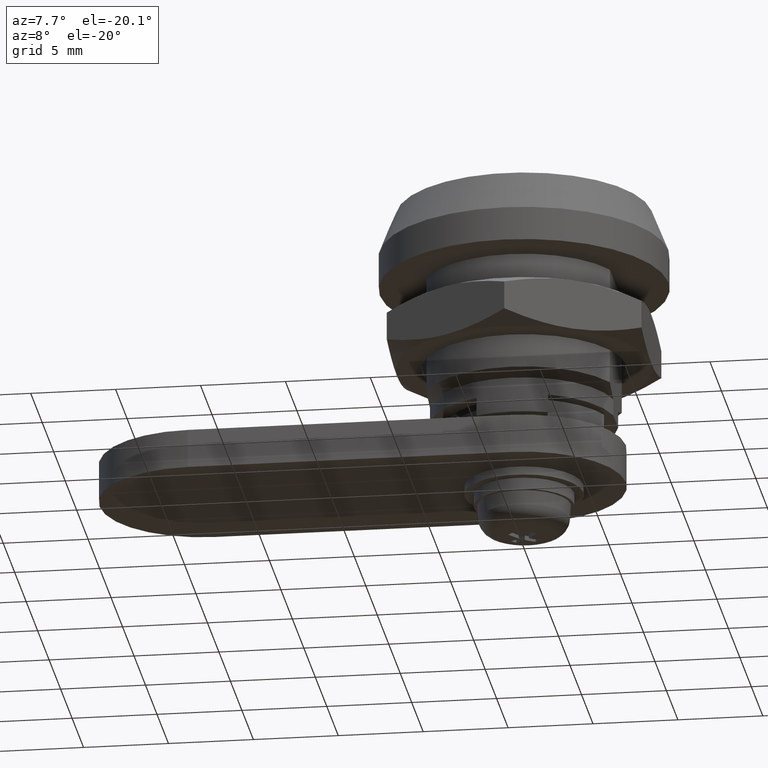
[diagram: clean part render]
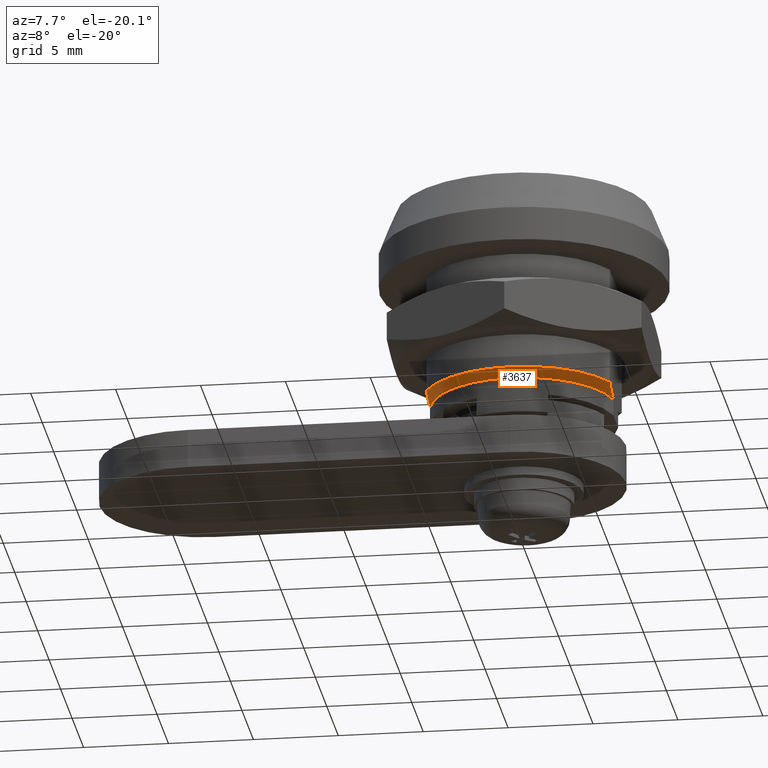
[diagram: same view with one face highlighted and labeled with its STEP entity id]
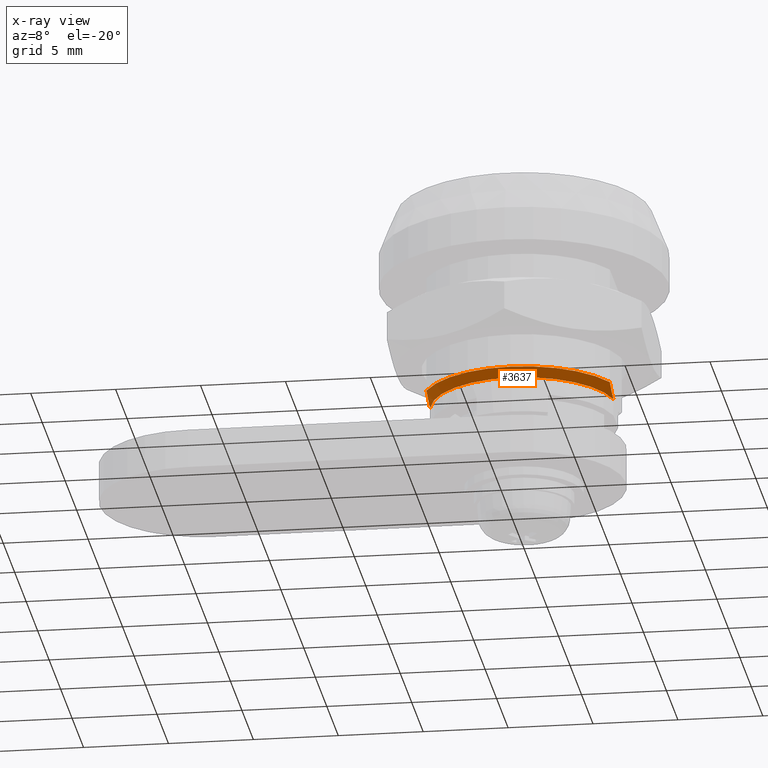
[diagram: x-ray of the same camera — body ghosted, the highlighted face saturated]
A machine part, auxiliary view. The second image highlights one B-rep face of the part: STEP entity #3637.
The next image is the same camera in x-ray: the body ghosted, the highlighted face saturated — about 0% of this face is hidden behind the body in this view.
In plain terms, the highlighted conical surface has half-angle 45 deg.
Its self-contained STEP definition (entity closure, byte-faithful):
#53 = AXIS2_PLACEMENT_3D ( 'NONE', #634, #860, #4313 ) ;
#136 = AXIS2_PLACEMENT_3D ( 'NONE', #4208, #1783, #3183 ) ;
#141 = CARTESIAN_POINT ( 'NONE',  ( 5.399999999999999500, -1.044030650891056400, -7.500000000000000000 ) ) ;
#170 = ORIENTED_EDGE ( 'NONE', *, *, #2043, .F. ) ;
#305 = EDGE_LOOP ( 'NONE', ( #3607, #1178, #3890, #170 ) ) ;
#354 = CARTESIAN_POINT ( 'NONE',  ( 5.399999999999999500, -2.107815371783681600, -7.221224580275332100 ) ) ;
#430 = B_SPLINE_CURVE_WITH_KNOTS ( 'NONE', 3,
 ( #503, #3480, #354, #608 ),
 .UNSPECIFIED., .F., .F.,
 ( 4, 4 ),
 ( 0.01133267281484692100, 0.01297798370396912100 ),
 .UNSPECIFIED. ) ;
#503 = CARTESIAN_POINT ( 'NONE',  ( 5.399999999999999500, -1.044030650891056400, -7.500000000000000000 ) ) ;
#608 = CARTESIAN_POINT ( 'NONE',  ( 5.399999999999999500, -2.615339366124408200, -6.999999999999988500 ) ) ;
#634 = CARTESIAN_POINT ( 'NONE',  ( 0.0000000000000000000, 0.0000000000000000000, -6.999999999999988500 ) ) ;
#643 = FACE_OUTER_BOUND ( 'NONE', #305, .T. ) ;
#701 = VERTEX_POINT ( 'NONE', #2943 ) ;
#797 = VERTEX_POINT ( 'NONE', #2013 ) ;
#860 = DIRECTION ( 'NONE',  ( 0.0000000000000000000, 0.0000000000000000000, 1.000000000000000000 ) ) ;
#888 = CARTESIAN_POINT ( 'NONE',  ( -5.399999999999999500, -1.584261172327750000, -7.397451414013306500 ) ) ;
#943 = DIRECTION ( 'NONE',  ( 0.0000000000000000000, 0.0000000000000000000, -1.000000000000000000 ) ) ;
#1093 = EDGE_CURVE ( 'NONE', #1342, #4270, #430, .T. ) ;
#1178 = ORIENTED_EDGE ( 'NONE', *, *, #3841, .F. ) ;
#1213 = CARTESIAN_POINT ( 'NONE',  ( 5.399999999999999500, -2.615339366124408200, -6.999999999999988500 ) ) ;
#1342 = VERTEX_POINT ( 'NONE', #141 ) ;
#1501 = B_SPLINE_CURVE_WITH_KNOTS ( 'NONE', 3,
 ( #3382, #888, #2637, #3746 ),
 .UNSPECIFIED., .F., .F.,
 ( 4, 4 ),
 ( 0.01133267281484692100, 0.01297798370396912100 ),
 .UNSPECIFIED. ) ;
#1783 = DIRECTION ( 'NONE',  ( 0.0000000000000000000, 0.0000000000000000000, 1.000000000000000000 ) ) ;
#2013 = CARTESIAN_POINT ( 'NONE',  ( -5.399999999999999500, -1.044030650891056400, -7.500000000000000000 ) ) ;
#2043 = EDGE_CURVE ( 'NONE', #701, #4270, #3177, .T. ) ;
#2068 = EDGE_CURVE ( 'NONE', #797, #701, #1501, .T. ) ;
#2637 = CARTESIAN_POINT ( 'NONE',  ( -5.399999999999999500, -2.107815371783681600, -7.221224580275332100 ) ) ;
#2943 = CARTESIAN_POINT ( 'NONE',  ( -5.399999999999999500, -2.615339366124408200, -6.999999999999988500 ) ) ;
#3053 = CARTESIAN_POINT ( 'NONE',  ( 0.0000000000000000000, 0.0000000000000000000, -7.500000000000000000 ) ) ;
#3177 = CIRCLE ( 'NONE', #53, 6.000000000000000900 ) ;
#3183 = DIRECTION ( 'NONE',  ( 1.000000000000000000, 0.0000000000000000000, 0.0000000000000000000 ) ) ;
#3382 = CARTESIAN_POINT ( 'NONE',  ( -5.399999999999999500, -1.044030650891056400, -7.500000000000000000 ) ) ;
#3403 = DIRECTION ( 'NONE',  ( -1.000000000000000000, 0.0000000000000000000, 0.0000000000000000000 ) ) ;
#3480 = CARTESIAN_POINT ( 'NONE',  ( 5.399999999999999500, -1.584261172327750000, -7.397451414013306500 ) ) ;
#3607 = ORIENTED_EDGE ( 'NONE', *, *, #2068, .F. ) ;
#3637 = ADVANCED_FACE ( 'NONE', ( #643 ), #3964, .T. ) ;
#3640 = AXIS2_PLACEMENT_3D ( 'NONE', #3053, #943, #3403 ) ;
#3746 = CARTESIAN_POINT ( 'NONE',  ( -5.399999999999999500, -2.615339366124408200, -6.999999999999988500 ) ) ;
#3841 = EDGE_CURVE ( 'NONE', #1342, #797, #4345, .T. ) ;
#3890 = ORIENTED_EDGE ( 'NONE', *, *, #1093, .T. ) ;
#3964 = CONICAL_SURFACE ( 'NONE', #136, 5.499999999999991100, 0.7853981633974473900 ) ;
#4208 = CARTESIAN_POINT ( 'NONE',  ( 0.0000000000000000000, 0.0000000000000000000, -7.500000000000000000 ) ) ;
#4270 = VERTEX_POINT ( 'NONE', #1213 ) ;
#4313 = DIRECTION ( 'NONE',  ( -1.000000000000000000, 0.0000000000000000000, 0.0000000000000000000 ) ) ;
#4345 = CIRCLE ( 'NONE', #3640, 5.500000000000000000 ) ;